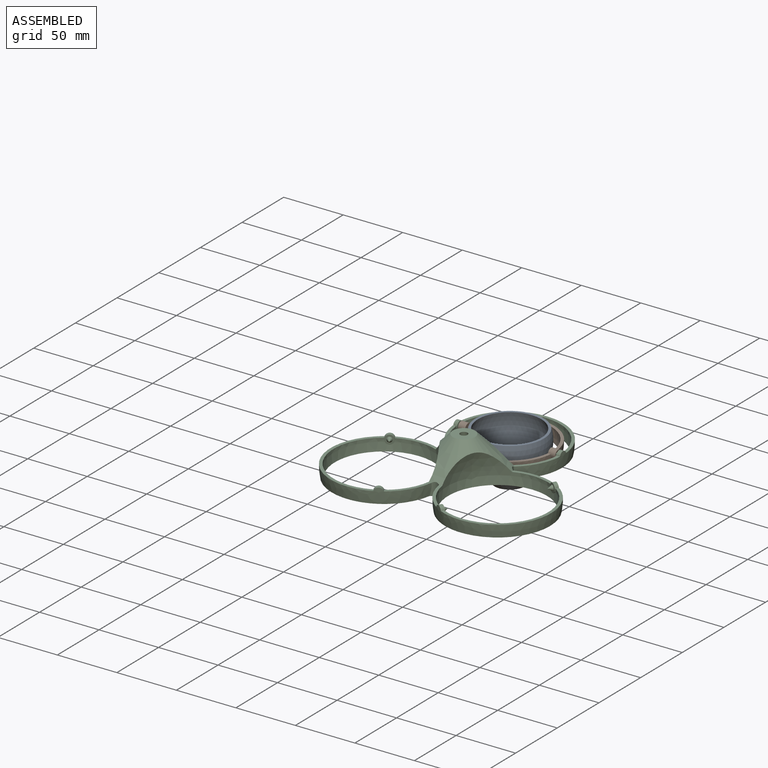
[diagram: assembled view]
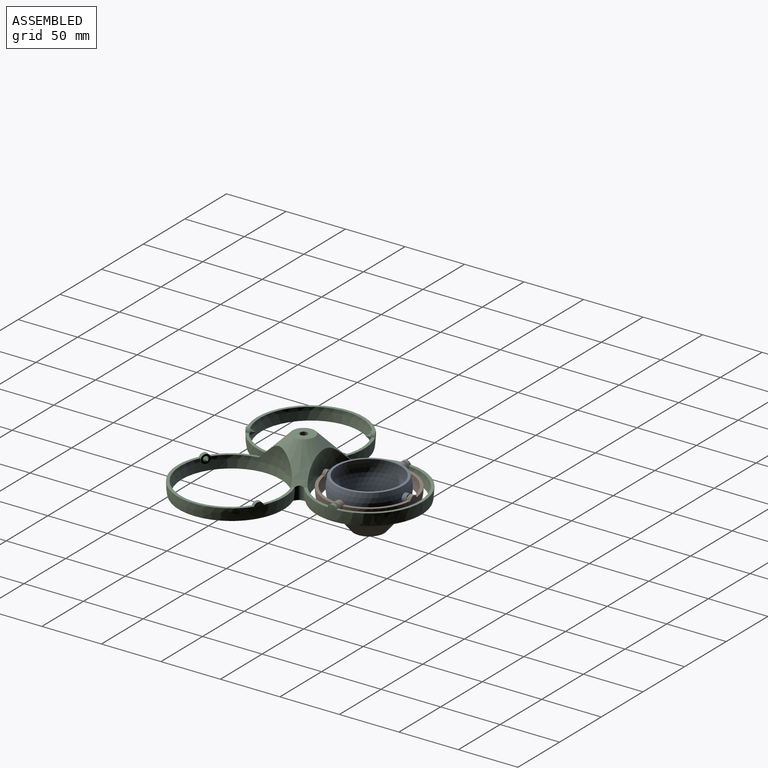
[diagram: assembled view, second angle]
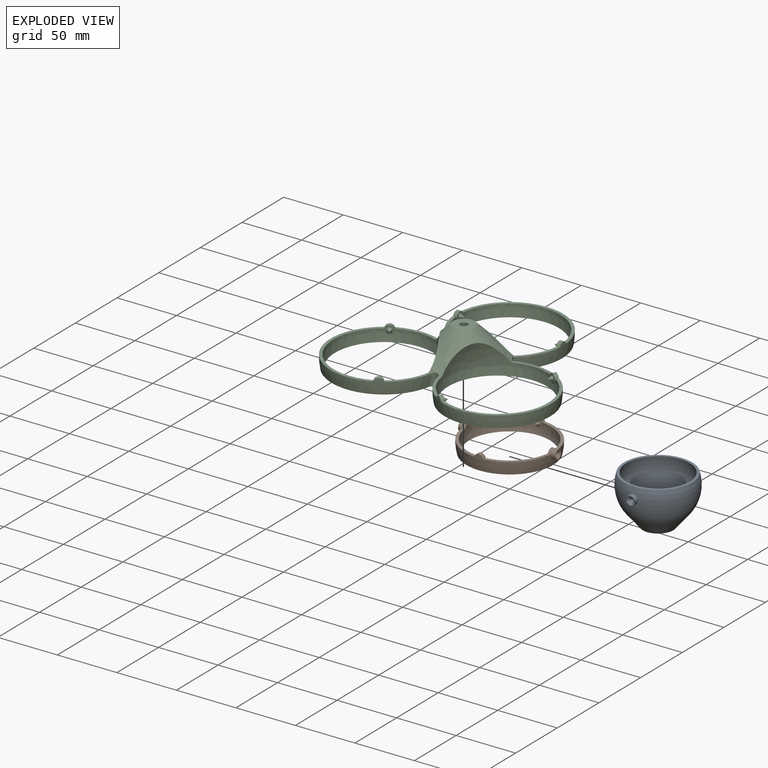
[diagram: exploded view]
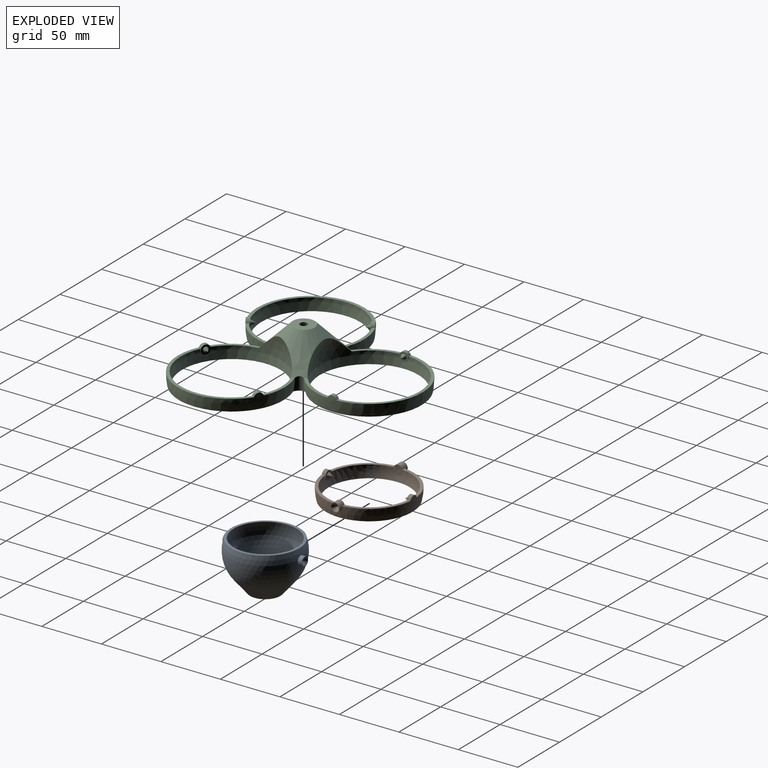
[diagram: exploded view, second angle]
ASSEMBLY  parts=3 mates=2
PART A: 25 faces, bbox 60.1x66.6x42 mm
  f0: plane 19.05x19.05mm, normal (0,0,1), area 263.7mm2, adj f17,f20,f22,f24
  f1: cone r=23.04mm half-angle=40deg, axis (0,0,-1), area 1791.6mm2, adj f2,f17
  f2: sphere r=30.07mm, area 5261.4mm2, adj f1,f3,f5,f10
  f3: plane 57.38x57.38mm, normal (0,0,-1), area 365.3mm2, adj f2,f16
  f4: sphere r=0.1mm, area 0mm2, adj f7,f8
  f5: cylinder r=3.8mm len=7.6mm, axis (0,-1,0), area 82.9mm2, adj f2,f6
  f6: plane 7.6x7.6mm, normal (0,-1,0), area 11.2mm2, adj f5,f7
  f7: cone r=3.3mm half-angle=45deg, axis (0,-1,0), area 48.4mm2, adj f4,f6
  f8: sphere r=30.07mm, area 0mm2, adj f4
  f9: sphere r=0.1mm, area 0mm2, adj f12,f13
  f10: cylinder r=3.8mm len=7.6mm, axis (0,1,0), area 82.9mm2, adj f2,f11
  f11: plane 7.6x7.6mm, normal (0,1,0), area 11.2mm2, adj f10,f12
  f12: cone r=3.3mm half-angle=45deg, axis (0,1,0), area 48.4mm2, adj f9,f11
  f13: sphere r=30.07mm, area 0mm2, adj f9
  f14: plane 17.18x17.18mm, normal (0,0,-1), area 231.9mm2, adj f18
  f15: cone r=21.5mm half-angle=40deg, axis (0,0,-1), area 1570.6mm2, adj f16,f18
  f16: sphere r=28.07mm, area 4769.8mm2, adj f3,f15
  f17: cone r=9.52mm half-angle=65deg, axis (0,0,-1), area 254.3mm2, adj f0,f1
  f18: cone r=11.88mm half-angle=65deg, axis (0,0,-1), area 233.1mm2, adj f14,f15
  f19: plane 3x3mm, normal (0,0,1), area 7.1mm2, adj f20
  f20: cylinder r=1.5mm len=3mm, axis (0,0,1), area 17mm2, adj f0,f19
  f21: plane 3x3mm, normal (0,0,1), area 7.1mm2, adj f22
  f22: cylinder r=1.5mm len=3mm, axis (0,0,1), area 17mm2, adj f0,f21
  f23: plane 3x3mm, normal (0,0,1), area 7.1mm2, adj f24
  f24: cylinder r=1.5mm len=3mm, axis (0,0,1), area 17mm2, adj f0,f23
PART B: 21 faces, bbox 81.6x75x70 mm
  f0: plane 33.64x33.64mm, normal (0,0,1), area 124mm2, adj f3,f4,f5,f16
  f1: plane 33.64x33.64mm, normal (0,0,1), area 124mm2, adj f3,f4,f16,f17
  f2: plane 33.64x33.64mm, normal (0,0,1), area 124mm2, adj f3,f4,f13,f17
  f3: sphere r=37.5mm, area 2326.1mm2, adj f0,f1,f2,f5,f9,f10,f13,f16
  f4: sphere r=35mm, area 2169.7mm2, adj f0,f1,f2,f5,f9,f10,f13,f16
  f5: cylinder r=3.8mm len=7.6mm, axis (-1,0,0), area 108.3mm2, adj f0,f3,f4,f6,f9
  f6: plane 7.6x7.6mm, normal (1,0,0), area 11.2mm2, adj f5,f7
  f7: cone r=0.07mm half-angle=45deg, axis (1,0,0), area 48.4mm2, adj f6,f8
  f8: sphere r=0.1mm, area 0mm2, adj f7
  f9: plane 33.64x33.64mm, normal (0,0,1), area 124mm2, adj f3,f4,f5,f13
  f10: plane 72.81x72.81mm, normal (0,0,-1), area 569.4mm2, adj f3,f4
  f11: cone r=2.19mm half-angle=30deg, axis (0,-1,0), area 30.2mm2, adj f12
  f12: plane 7.6x7.6mm, normal (0,1,0), area 30.2mm2, adj f11,f13
  f13: cylinder r=3.8mm len=7.6mm, axis (0,-1,0), area 41.5mm2, adj f2,f3,f4,f9,f12
  f14: cone r=2.19mm half-angle=30deg, axis (0,1,0), area 30.2mm2, adj f15
  f15: plane 7.6x7.6mm, normal (0,-1,0), area 30.2mm2, adj f14,f16
  f16: cylinder r=3.8mm len=7.6mm, axis (0,1,0), area 41.5mm2, adj f0,f1,f3,f4,f15
  f17: cylinder r=3.8mm len=7.6mm, axis (1,0,0), area 108.3mm2, adj f1,f2,f3,f4,f18
  f18: plane 7.6x7.6mm, normal (-1,0,0), area 11.2mm2, adj f17,f19
  f19: cone r=0.07mm half-angle=45deg, axis (-1,0,0), area 48.4mm2, adj f18,f20
  f20: sphere r=0.1mm, area 0mm2, adj f19
PART C: 49 faces, bbox 185.3x172.5x90 mm
  f0: plane 183.46x170.7mm, normal (0,0,-1), area 2278.1mm2, adj f1,f3,f12,f13,f16,f17,f19,f28
  f1: cylinder r=6mm len=11mm, axis (0,0,-1), area 78.2mm2, adj f0,f2,f3,f15,f19,f20
  f2: plane 31.56x18.31mm, normal (0,0,1), area 88.9mm2, adj f1,f3,f6,f12,f15
  f3: sphere r=45mm, area 2247.7mm2, adj f0,f1,f2,f4,f6,f9,f11,f13
  f4: plane 31.56x18.31mm, normal (0,0,1), area 88.9mm2, adj f3,f9,f12,f13,f15
  f5: plane 7.6x7.6mm, normal (1,0,0), area 30.2mm2, adj f6,f7
  f6: cylinder r=3.8mm len=7.6mm, axis (1,0,0), area 42.3mm2, adj f2,f3,f5,f11,f12
  f7: cone r=0mm half-angle=30deg, axis (-1,0,0), area 30.2mm2, adj f5
  f8: plane 7.6x7.6mm, normal (-1,0,0), area 30.2mm2, adj f9,f10
  f9: cylinder r=3.8mm len=7.6mm, axis (-1,0,0), area 42.3mm2, adj f3,f4,f8,f11,f12
  f10: cone r=0mm half-angle=30deg, axis (1,0,0), area 30.2mm2, adj f8
  f11: plane 89.68x41.32mm, normal (0,0,1), area 325.3mm2, adj f3,f6,f9,f12
  f12: sphere r=42.5mm, area 3260.5mm2, adj f0,f2,f4,f6,f9,f11,f15
  f13: cylinder r=6mm len=11mm, axis (0,0,-1), area 78.2mm2, adj f0,f3,f4,f15,f29,f30
  f14: plane 18.7x18.7mm, normal (0,0,1), area 244mm2, adj f15,f16
  f15: cone r=14.35mm half-angle=45deg, axis (0,0,-1), area 1962.5mm2, adj f1,f2,f4,f12,f13,f14,f17,f18
  f16: cone r=4mm half-angle=10deg, axis (0,0,-1), area 1385.4mm2, adj f0,f14
  f17: cylinder r=6mm len=11mm, axis (0,0,-1), area 78.2mm2, adj f0,f15,f18,f19,f30,f31
  f18: plane 30.62x20.21mm, normal (0,0,1), area 88.9mm2, adj f15,f17,f19,f22,f28
  f19: sphere r=45mm, area 2248.3mm2, adj f0,f1,f17,f18,f20,f22,f25,f27
  f20: plane 35.71x6.5mm, normal (0,0,1), area 88.9mm2, adj f1,f15,f19,f25,f28
  f21: plane 7.6x6.58mm, normal (-0.5,0.87,0), area 30.2mm2, adj f22,f23
  f22: cylinder r=3.8mm len=8.2mm, axis (-0.5,0.87,0), area 42.3mm2, adj f18,f19,f21,f27,f28
  f23: cone r=0mm half-angle=30deg, axis (0.5,-0.87,0), area 30.2mm2, adj f21
  f24: plane 7.6x6.58mm, normal (0.5,-0.87,0), area 30.2mm2, adj f25,f26
  f25: cylinder r=3.8mm len=8.2mm, axis (0.5,-0.87,0), area 42.3mm2, adj f19,f20,f24,f27,f28
  f26: cone r=0mm half-angle=30deg, axis (-0.5,0.87,0), area 30.2mm2, adj f24
  f27: plane 81.99x64.23mm, normal (0,0,1), area 325.3mm2, adj f19,f22,f25,f28
  f28: sphere r=42.5mm, area 3260.5mm2, adj f0,f15,f18,f20,f22,f25,f27
  f29: plane 35.71x6.5mm, normal (0,0,1), area 88.9mm2, adj f13,f15,f30,f33,f39
  f30: sphere r=45mm, area 2248.3mm2, adj f0,f13,f17,f29,f31,f33,f36,f38
  f31: plane 30.62x20.21mm, normal (0,0,1), area 88.9mm2, adj f15,f17,f30,f36,f39
  f32: plane 7.6x6.58mm, normal (-0.5,-0.87,0), area 30.2mm2, adj f33,f34
  f33: cylinder r=3.8mm len=8.2mm, axis (-0.5,-0.87,0), area 42.3mm2, adj f29,f30,f32,f38,f39
  f34: cone r=0mm half-angle=30deg, axis (0.5,0.87,0), area 30.2mm2, adj f32
  f35: plane 7.6x6.58mm, normal (0.5,0.87,0), area 30.2mm2, adj f36,f37
  f36: cylinder r=3.8mm len=8.2mm, axis (0.5,0.87,0), area 42.3mm2, adj f30,f31,f35,f38,f39
  f37: cone r=0mm half-angle=30deg, axis (-0.5,-0.87,0), area 30.2mm2, adj f35
  f38: plane 81.99x64.23mm, normal (0,0,1), area 325.3mm2, adj f30,f33,f36,f39
  f39: sphere r=42.5mm, area 3260.5mm2, adj f0,f15,f29,f31,f33,f36,f38
  f40: cylinder r=8.5mm len=9.97mm, axis (0,0,-1), area 61.8mm2, adj f0,f41,f44,f47
  f41: sphere r=45mm, area 1064.2mm2, adj f0,f40,f42,f44,f45
  f42: cylinder r=8.5mm len=9.97mm, axis (0,0,-1), area 61.8mm2, adj f0,f41,f44,f48
  f43: plane 16.62x16.62mm, normal (0,0,-1), area 100.3mm2, adj f44,f45
  f44: cone r=12.58mm half-angle=45deg, axis (0,0,-1), area 1258.7mm2, adj f40,f41,f42,f43,f46,f47,f48
  f45: cone r=6.46mm half-angle=10deg, axis (0,0,-1), area 1653.2mm2, adj f0,f41,f43,f47,f48
  f46: cylinder r=8.5mm len=9.97mm, axis (0,0,-1), area 61.8mm2, adj f0,f44,f47,f48
  f47: sphere r=45mm, area 1064.3mm2, adj f0,f40,f44,f45,f46
  f48: sphere r=45mm, area 1064.2mm2, adj f0,f42,f44,f45,f46
PLACE A rot(axis=(1,0,0),180deg) t=(0,0,9)mm
PLACE B t=(0,0,9)mm
PLACE C t=(0,0,9)mm
MATE revolute B.f17 <-> C.f6  axis (-1,0,0) through (-40.8,0,9)mm
MATE revolute A.f16 <-> B.f19  axis (-1,0,0) through (-33.3,0,9)mm
